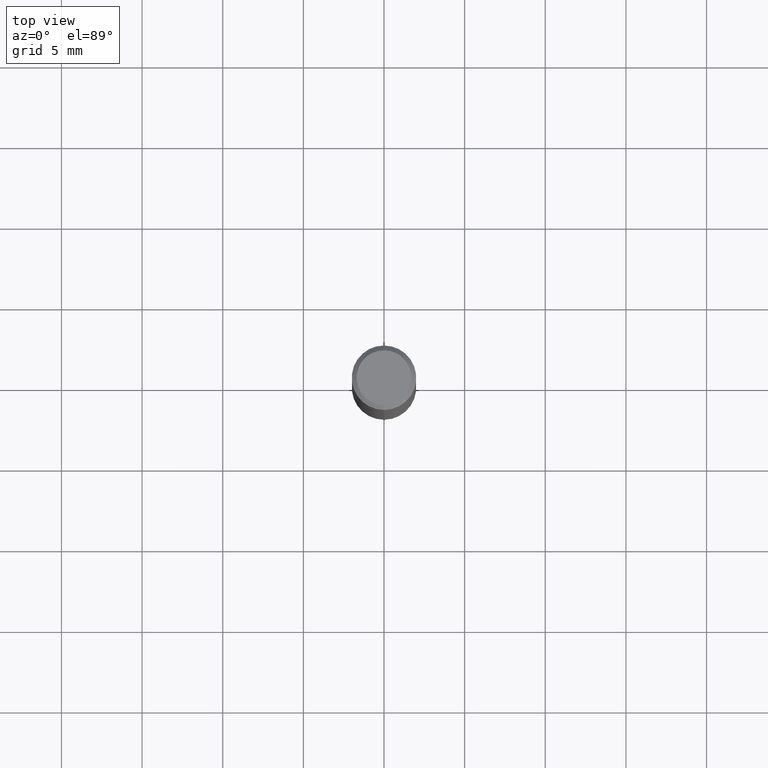
[diagram: clean part render]
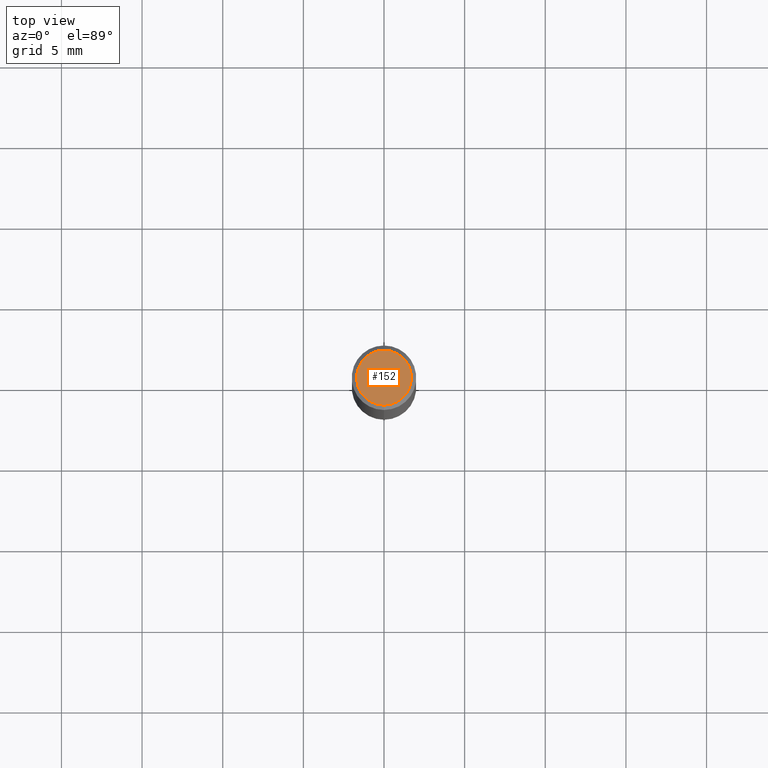
[diagram: same view with one face highlighted and labeled with its STEP entity id]
A machine part, top view. The second image highlights one B-rep face of the part: STEP entity #152.
In plain terms, the highlighted planar face has unit normal (-0, 0, 1).
Its self-contained STEP definition (entity closure, byte-faithful):
#98=VERTEX_POINT('',#239);
#126=VERTEX_POINT('',#270);
#152=ADVANCED_FACE('',(#297),#298,.T.);
#168=EDGE_CURVE('',#126,#98,#316,.T.);
#180=EDGE_CURVE('',#98,#126,#332,.T.);
#239=CARTESIAN_POINT('',(2.08183080149804E-016,-1.7,0.0));
#270=CARTESIAN_POINT('',(0.0,1.7,0.0));
#297=FACE_OUTER_BOUND('',#467,.T.);
#298=PLANE('',#468);
#316=CIRCLE('',#491,1.7);
#332=CIRCLE('',#510,1.7);
#467=EDGE_LOOP('',(#634,#635));
#468=AXIS2_PLACEMENT_3D('',#636,#637,#638);
#491=AXIS2_PLACEMENT_3D('',#655,#656,#657);
#510=AXIS2_PLACEMENT_3D('',#681,#682,#683);
#634=ORIENTED_EDGE('',*,*,#168,.F.);
#635=ORIENTED_EDGE('',*,*,#180,.F.);
#636=CARTESIAN_POINT('',(0.0,0.85,0.0));
#637=DIRECTION('',(-0.0,0.0,1.0));
#638=DIRECTION('',(0.0,-1.0,0.0));
#655=CARTESIAN_POINT('',(0.0,0.0,0.0));
#656=DIRECTION('',(0.0,0.0,-1.0));
#657=DIRECTION('',(0.0,1.0,0.0));
#681=CARTESIAN_POINT('',(0.0,0.0,0.0));
#682=DIRECTION('',(0.0,0.0,-1.0));
#683=DIRECTION('',(0.0,1.0,0.0));